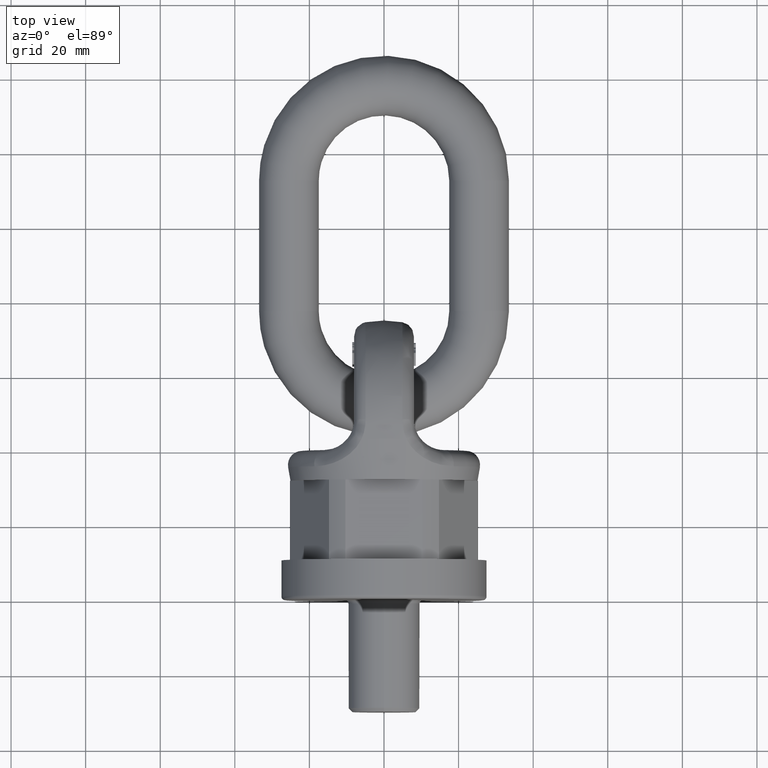
[diagram: clean part render]
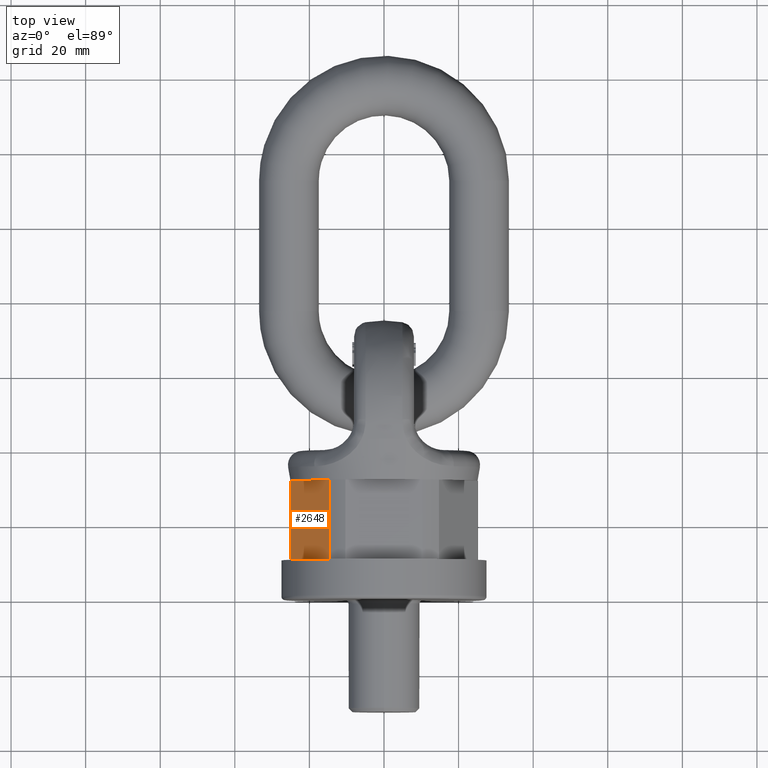
[diagram: same view with one face highlighted and labeled with its STEP entity id]
A machine part, top view. The second image highlights one B-rep face of the part: STEP entity #2648.
In plain terms, the highlighted planar face has unit normal (-0.866, 0, 0.5).
Its self-contained STEP definition (entity closure, byte-faithful):
#1806=FACE_OUTER_BOUND('',#3071,.T.);
#2043=LINE('',#6586,#2299);
#2047=LINE('',#6605,#2303);
#2048=LINE('',#6607,#2304);
#2049=LINE('',#6609,#2305);
#2299=VECTOR('',#5825,1.);
#2303=VECTOR('',#5843,1.);
#2304=VECTOR('',#5844,1.);
#2305=VECTOR('',#5845,1.);
#2648=ADVANCED_FACE('',(#1806),#2890,.T.);
#2890=PLANE('',#5617);
#3071=EDGE_LOOP('',(#3368,#3369,#3370,#3371));
#3368=ORIENTED_EDGE('',*,*,#4957,.F.);
#3369=ORIENTED_EDGE('',*,*,#4948,.T.);
#3370=ORIENTED_EDGE('',*,*,#4958,.F.);
#3371=ORIENTED_EDGE('',*,*,#4959,.T.);
#4550=VERTEX_POINT('',#6585);
#4551=VERTEX_POINT('',#6587);
#4559=VERTEX_POINT('',#6606);
#4560=VERTEX_POINT('',#6608);
#4948=EDGE_CURVE('',#4551,#4550,#2043,.T.);
#4957=EDGE_CURVE('',#4551,#4559,#2047,.T.);
#4958=EDGE_CURVE('',#4560,#4550,#2048,.T.);
#4959=EDGE_CURVE('',#4560,#4559,#2049,.T.);
#5617=AXIS2_PLACEMENT_3D('',#6610,#5846,#5847);
#5825=DIRECTION('',(0.499999999999999,2.05702392044282E-17,0.866025403784439));
#5843=DIRECTION('',(-2.4492935982947E-17,1.,0.));
#5844=DIRECTION('',(2.4492935982947E-17,-1.,0.));
#5845=DIRECTION('',(-0.499999999999999,0.,-0.866025403784439));
#5846=DIRECTION('',(-0.866025403784439,0.,0.499999999999999));
#5847=DIRECTION('',(0.499999999999999,0.,0.866025403784439));
#6585=CARTESIAN_POINT('',(-14.7329470712957,10.6666666666667,20.4817871272927));
#6586=CARTESIAN_POINT('',(-13.0435842870421,10.6666666666667,23.407849302036));
#6587=CARTESIAN_POINT('',(-25.1042215027884,10.6666666666667,2.51821287270726));
#6605=CARTESIAN_POINT('',(-25.1042215027884,-1.27011480356063E-16,2.51821287270726));
#6606=CARTESIAN_POINT('',(-25.1042215027884,32.,2.51821287270725));
#6607=CARTESIAN_POINT('',(-14.7329470712957,1.27011480356063E-16,20.4817871272927));
#6608=CARTESIAN_POINT('',(-14.7329470712957,32.,20.4817871272927));
#6609=CARTESIAN_POINT('',(-13.2790561913614,32.,23.));
#6610=CARTESIAN_POINT('',(-13.2790561913614,32.,23.));